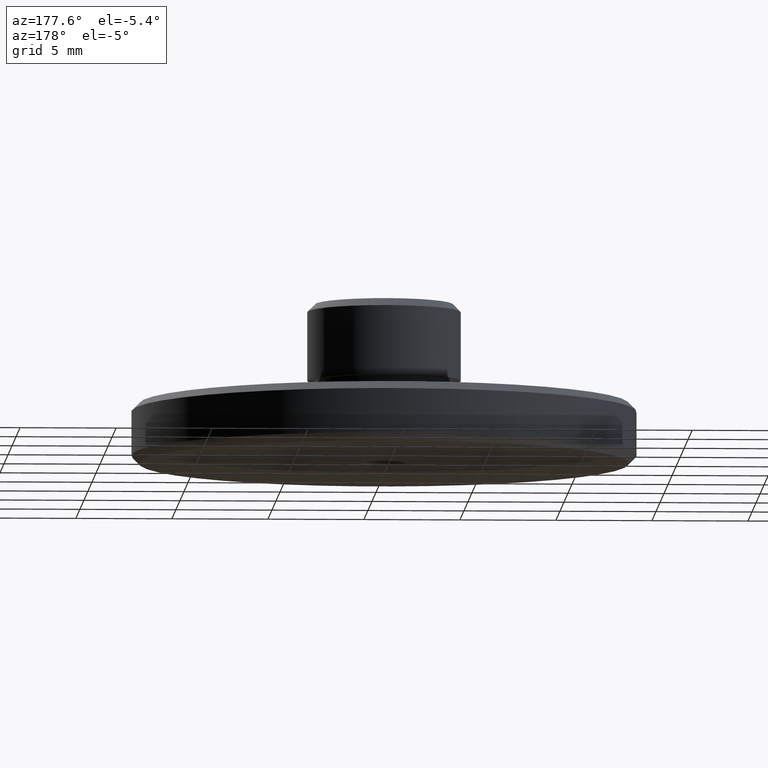
[diagram: clean part render]
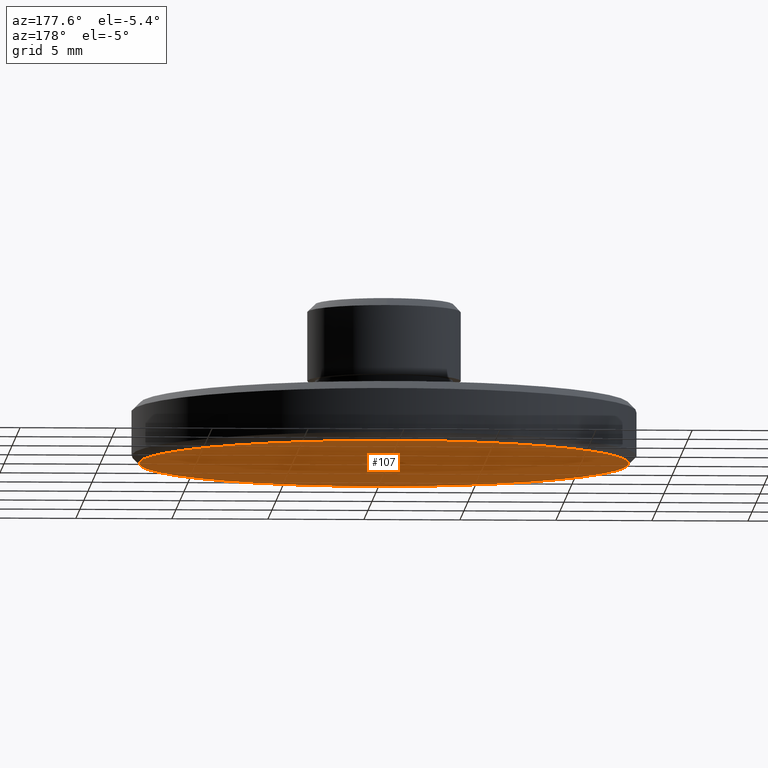
[diagram: same view with one face highlighted and labeled with its STEP entity id]
A machine part, auxiliary view. The second image highlights one B-rep face of the part: STEP entity #107.
In plain terms, the highlighted planar face has unit normal (0, 0, 1).
Its self-contained STEP definition (entity closure, byte-faithful):
#29 = EDGE_CURVE ( 'NONE', #569, #942, #920, .T. ) ;
#73 = DIRECTION ( 'NONE',  ( 0.000000000000000000, 0.000000000000000000, -1.000000000000000000 ) ) ;
#101 = CARTESIAN_POINT ( 'NONE',  ( 0.000000000000000000, 0.000000000000000000, 0.000000000000000000 ) ) ;
#107 = ADVANCED_FACE ( 'NONE', ( #1351, #1495 ), #309, .F. ) ;
#171 = CIRCLE ( 'NONE', #912, 1.150000000000000133 ) ;
#237 = DIRECTION ( 'NONE',  ( -0.000000000000000000, 0.000000000000000000, -1.000000000000000000 ) ) ;
#241 = CARTESIAN_POINT ( 'NONE',  ( 0.000000000000000000, 0.000000000000000000, 0.000000000000000000 ) ) ;
#309 = PLANE ( 'NONE',  #843 ) ;
#364 = CARTESIAN_POINT ( 'NONE',  ( 0.000000000000000000, 0.000000000000000000, 0.000000000000000000 ) ) ;
#377 = CARTESIAN_POINT ( 'NONE',  ( 1.150000000000000133, 1.408343819019456275E-16, 0.000000000000000000 ) ) ;
#390 = AXIS2_PLACEMENT_3D ( 'NONE', #241, #641, #1690 ) ;
#412 = ORIENTED_EDGE ( 'NONE', *, *, #596, .F. ) ;
#473 = AXIS2_PLACEMENT_3D ( 'NONE', #101, #73, #1393 ) ;
#569 = VERTEX_POINT ( 'NONE', #1010 ) ;
#596 = EDGE_CURVE ( 'NONE', #1622, #1522, #171, .T. ) ;
#607 = DIRECTION ( 'NONE',  ( -1.000000000000000000, 0.000000000000000000, 0.000000000000000000 ) ) ;
#639 = EDGE_CURVE ( 'NONE', #1522, #1622, #1385, .T. ) ;
#641 = DIRECTION ( 'NONE',  ( -0.000000000000000000, 0.000000000000000000, -1.000000000000000000 ) ) ;
#706 = AXIS2_PLACEMENT_3D ( 'NONE', #364, #237, #917 ) ;
#707 = DIRECTION ( 'NONE',  ( 0.000000000000000000, 0.000000000000000000, 1.000000000000000000 ) ) ;
#720 = CARTESIAN_POINT ( 'NONE',  ( 0.000000000000000000, 0.000000000000000000, 0.000000000000000000 ) ) ;
#843 = AXIS2_PLACEMENT_3D ( 'NONE', #1362, #707, #1241 ) ;
#870 = DIRECTION ( 'NONE',  ( 0.000000000000000000, 0.000000000000000000, -1.000000000000000000 ) ) ;
#912 = AXIS2_PLACEMENT_3D ( 'NONE', #720, #870, #607 ) ;
#914 = CARTESIAN_POINT ( 'NONE',  ( -1.150000000000000133, 0.000000000000000000, 0.000000000000000000 ) ) ;
#917 = DIRECTION ( 'NONE',  ( 1.000000000000000000, 0.000000000000000000, 0.000000000000000000 ) ) ;
#920 = CIRCLE ( 'NONE', #390, 12.75000000000000178 ) ;
#942 = VERTEX_POINT ( 'NONE', #1401 ) ;
#1010 = CARTESIAN_POINT ( 'NONE',  ( -12.75000000000000178, 1.585917604895822417E-15, 0.000000000000000000 ) ) ;
#1044 = EDGE_CURVE ( 'NONE', #942, #569, #1336, .T. ) ;
#1048 = ORIENTED_EDGE ( 'NONE', *, *, #29, .T. ) ;
#1241 = DIRECTION ( 'NONE',  ( 1.000000000000000000, 0.000000000000000000, 0.000000000000000000 ) ) ;
#1260 = EDGE_LOOP ( 'NONE', ( #1486, #1048 ) ) ;
#1336 = CIRCLE ( 'NONE', #706, 12.75000000000000178 ) ;
#1351 = FACE_BOUND ( 'NONE', #1394, .T. ) ;
#1362 = CARTESIAN_POINT ( 'NONE',  ( -12.90300000000000047, -12.90300000000000047, 0.000000000000000000 ) ) ;
#1385 = CIRCLE ( 'NONE', #473, 1.150000000000000133 ) ;
#1393 = DIRECTION ( 'NONE',  ( -1.000000000000000000, 0.000000000000000000, 0.000000000000000000 ) ) ;
#1394 = EDGE_LOOP ( 'NONE', ( #1629, #412 ) ) ;
#1401 = CARTESIAN_POINT ( 'NONE',  ( 12.75000000000000178, 0.000000000000000000, 0.000000000000000000 ) ) ;
#1486 = ORIENTED_EDGE ( 'NONE', *, *, #1044, .T. ) ;
#1495 = FACE_OUTER_BOUND ( 'NONE', #1260, .T. ) ;
#1522 = VERTEX_POINT ( 'NONE', #914 ) ;
#1622 = VERTEX_POINT ( 'NONE', #377 ) ;
#1629 = ORIENTED_EDGE ( 'NONE', *, *, #639, .F. ) ;
#1690 = DIRECTION ( 'NONE',  ( 1.000000000000000000, 0.000000000000000000, 0.000000000000000000 ) ) ;